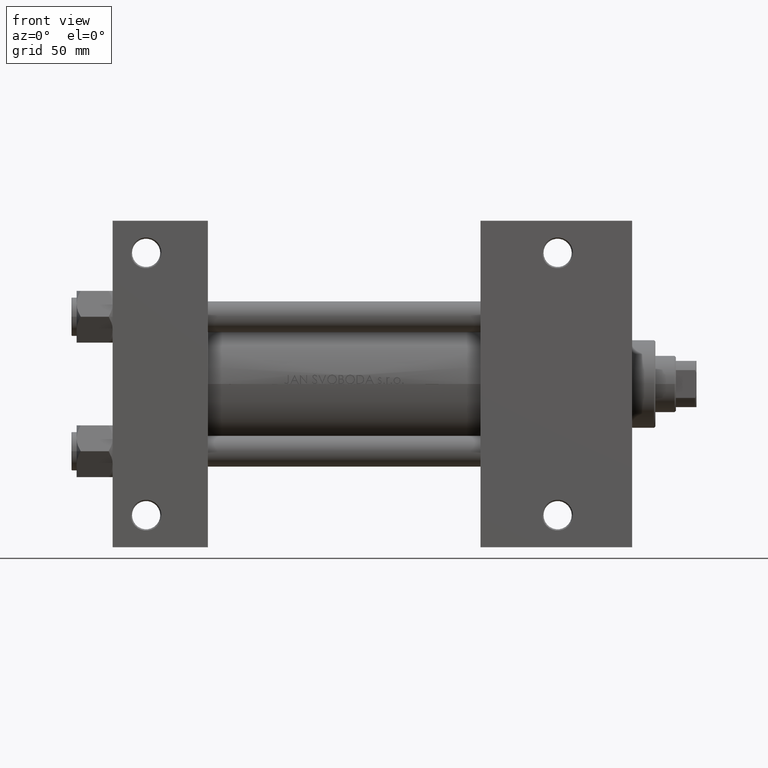
[diagram: clean part render]
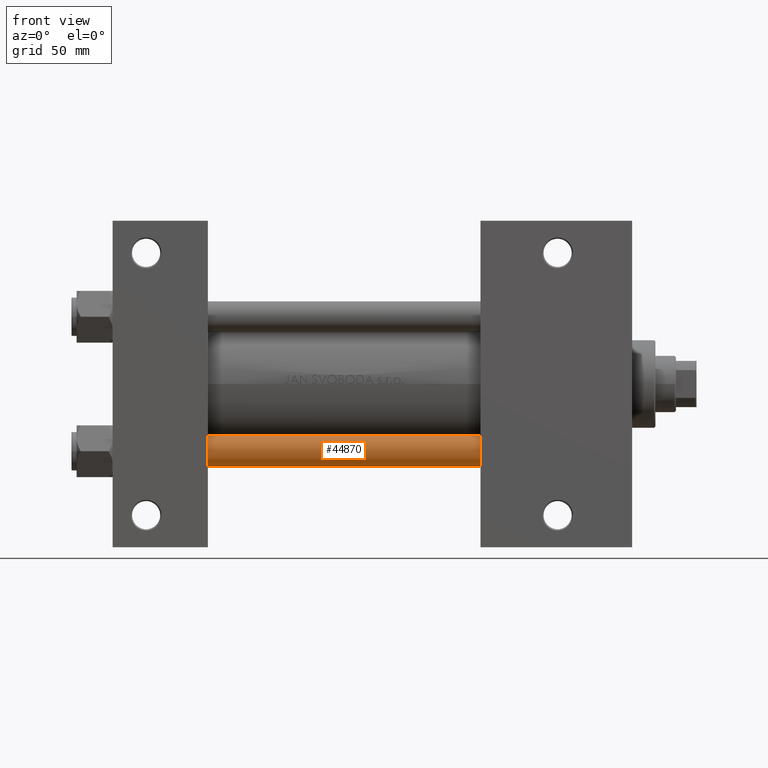
[diagram: same view with one face highlighted and labeled with its STEP entity id]
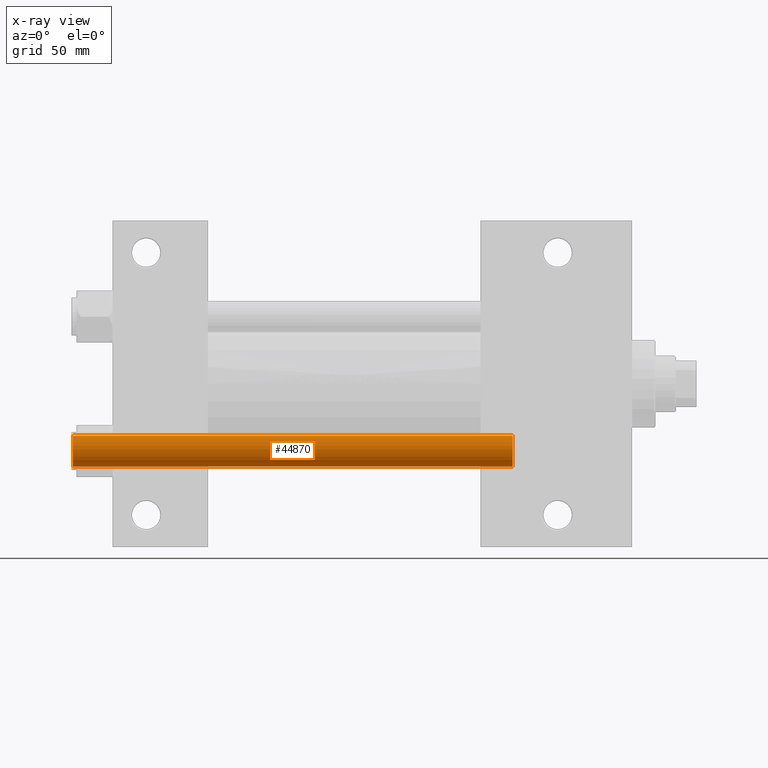
[diagram: x-ray of the same camera — body ghosted, the highlighted face saturated]
A machine part, front view. The second image highlights one B-rep face of the part: STEP entity #44870.
The next image is the same camera in x-ray: the body ghosted, the highlighted face saturated — about 0% of this face is hidden behind the body in this view.
In plain terms, the highlighted cylindrical surface (edge-blend (fillet) strip) has radius 6 mm, axis along (-1, 0, 0).
Its self-contained STEP definition (entity closure, byte-faithful):
#79 = AXIS2_PLACEMENT_3D ( 'NONE', #31497, #15603, #27308 ) ;
#737 = CIRCLE ( 'NONE', #15093, 6.000000000000000888 ) ;
#1161 = EDGE_CURVE ( 'NONE', #48507, #2739, #737, .T. ) ;
#1685 = EDGE_LOOP ( 'NONE', ( #9074, #19260, #31243, #37472 ) ) ;
#2739 = VERTEX_POINT ( 'NONE', #40871 ) ;
#3610 = CARTESIAN_POINT ( 'NONE',  ( -6.000000000000000888, 0.000000000000000000, 172.0000000000000000 ) ) ;
#5489 = VERTEX_POINT ( 'NONE', #16944 ) ;
#9074 = ORIENTED_EDGE ( 'NONE', *, *, #41871, .T. ) ;
#9291 = LINE ( 'NONE', #11384, #49253 ) ;
#11384 = CARTESIAN_POINT ( 'NONE',  ( 6.000000000000000888, 7.347880794884120722E-16, 172.0000000000000000 ) ) ;
#13047 = CARTESIAN_POINT ( 'NONE',  ( 0.000000000000000000, 0.000000000000000000, 172.0000000000000000 ) ) ;
#15093 = AXIS2_PLACEMENT_3D ( 'NONE', #46628, #27713, #42890 ) ;
#15580 = VECTOR ( 'NONE', #26551, 1000.000000000000000 ) ;
#15603 = DIRECTION ( 'NONE',  ( 0.000000000000000000, 0.000000000000000000, -1.000000000000000000 ) ) ;
#16944 = CARTESIAN_POINT ( 'NONE',  ( 6.000000000000000888, 7.347880794884120722E-16, 171.4999999999999716 ) ) ;
#17571 = CIRCLE ( 'NONE', #79, 6.000000000000000888 ) ;
#18263 = EDGE_CURVE ( 'NONE', #47462, #2739, #26302, .T. ) ;
#19260 = ORIENTED_EDGE ( 'NONE', *, *, #30757, .T. ) ;
#20781 = CYLINDRICAL_SURFACE ( 'NONE', #22317, 6.000000000000000888 ) ;
#22317 = AXIS2_PLACEMENT_3D ( 'NONE', #13047, #25243, #36428 ) ;
#25243 = DIRECTION ( 'NONE',  ( -0.000000000000000000, -0.000000000000000000, -1.000000000000000000 ) ) ;
#26302 = LINE ( 'NONE', #3610, #15580 ) ;
#26551 = DIRECTION ( 'NONE',  ( -0.000000000000000000, -0.000000000000000000, -1.000000000000000000 ) ) ;
#26956 = CARTESIAN_POINT ( 'NONE',  ( -6.000000000000000888, 0.000000000000000000, 171.4999999999999716 ) ) ;
#27308 = DIRECTION ( 'NONE',  ( 1.000000000000000000, 0.000000000000000000, 0.000000000000000000 ) ) ;
#27713 = DIRECTION ( 'NONE',  ( -0.000000000000000000, -0.000000000000000000, 1.000000000000000000 ) ) ;
#30757 = EDGE_CURVE ( 'NONE', #5489, #48507, #9291, .T. ) ;
#31243 = ORIENTED_EDGE ( 'NONE', *, *, #1161, .T. ) ;
#31497 = CARTESIAN_POINT ( 'NONE',  ( 0.000000000000000000, 0.000000000000000000, 171.4999999999999716 ) ) ;
#34525 = DIRECTION ( 'NONE',  ( -0.000000000000000000, -0.000000000000000000, -1.000000000000000000 ) ) ;
#35945 = FACE_OUTER_BOUND ( 'NONE', #1685, .T. ) ;
#36428 = DIRECTION ( 'NONE',  ( -1.000000000000000000, 0.000000000000000000, 0.000000000000000000 ) ) ;
#37472 = ORIENTED_EDGE ( 'NONE', *, *, #18263, .F. ) ;
#37715 = CARTESIAN_POINT ( 'NONE',  ( 6.000000000000000888, 7.347880794884120722E-16, 0.5000000000000004441 ) ) ;
#40871 = CARTESIAN_POINT ( 'NONE',  ( -6.000000000000000888, 0.000000000000000000, 0.5000000000000004441 ) ) ;
#41871 = EDGE_CURVE ( 'NONE', #47462, #5489, #17571, .T. ) ;
#42890 = DIRECTION ( 'NONE',  ( 1.000000000000000000, 0.000000000000000000, 0.000000000000000000 ) ) ;
#44870 = ADVANCED_FACE ( 'NONE', ( #35945 ), #20781, .T. ) ;
#46628 = CARTESIAN_POINT ( 'NONE',  ( 0.000000000000000000, 0.000000000000000000, 0.5000000000000004441 ) ) ;
#47462 = VERTEX_POINT ( 'NONE', #26956 ) ;
#48507 = VERTEX_POINT ( 'NONE', #37715 ) ;
#49253 = VECTOR ( 'NONE', #34525, 1000.000000000000000 ) ;